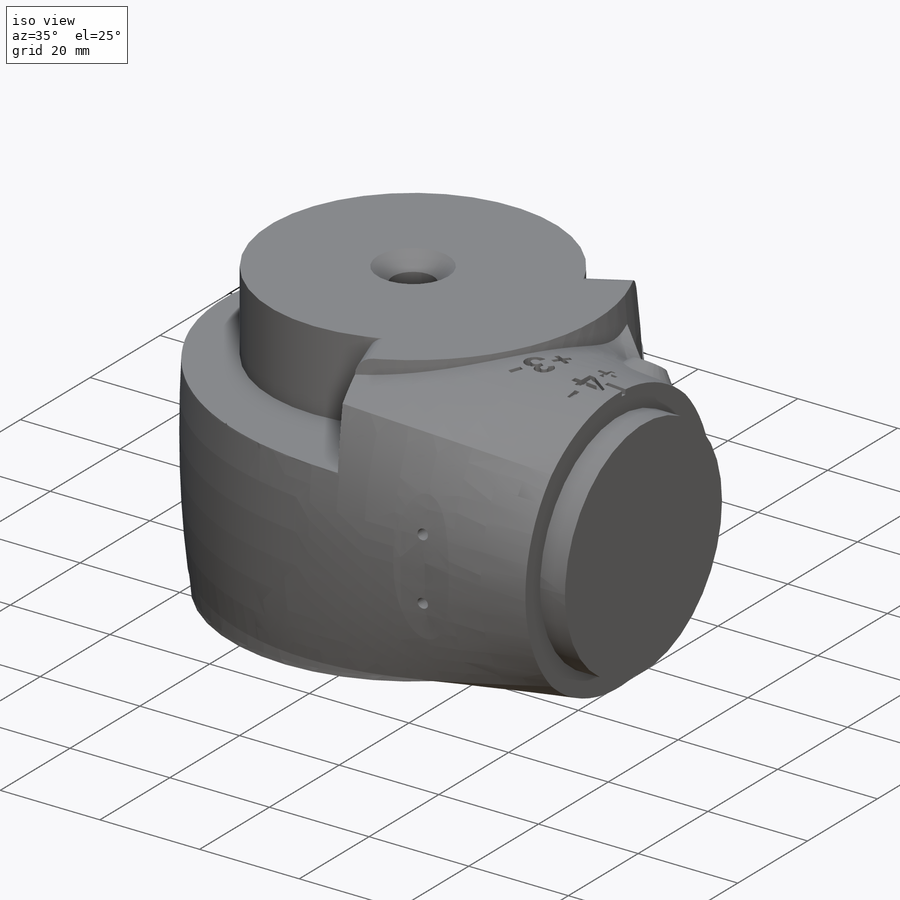
[diagram: iso view]
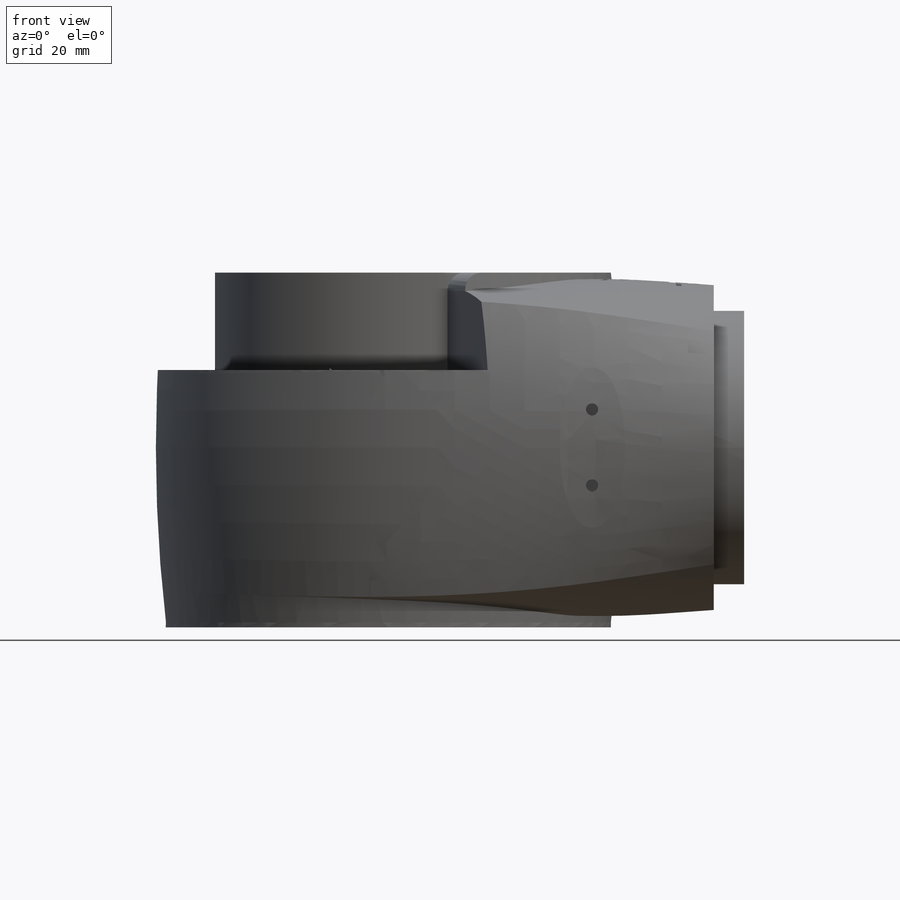
[diagram: front view]
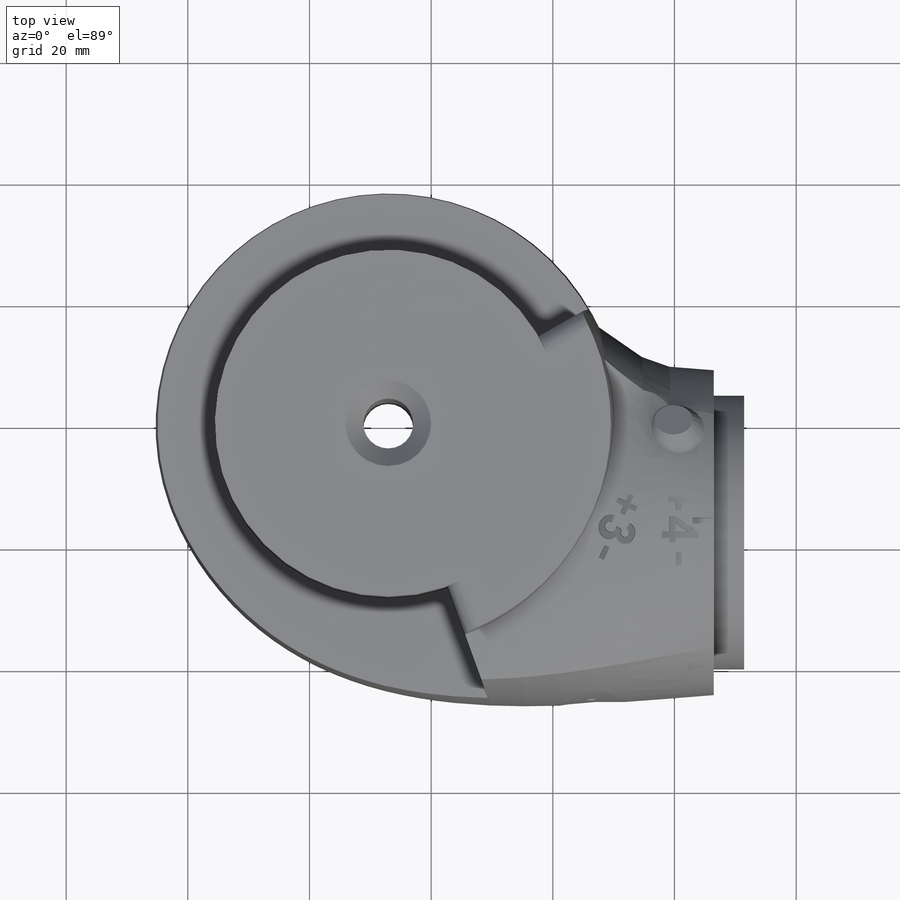
[diagram: top view]
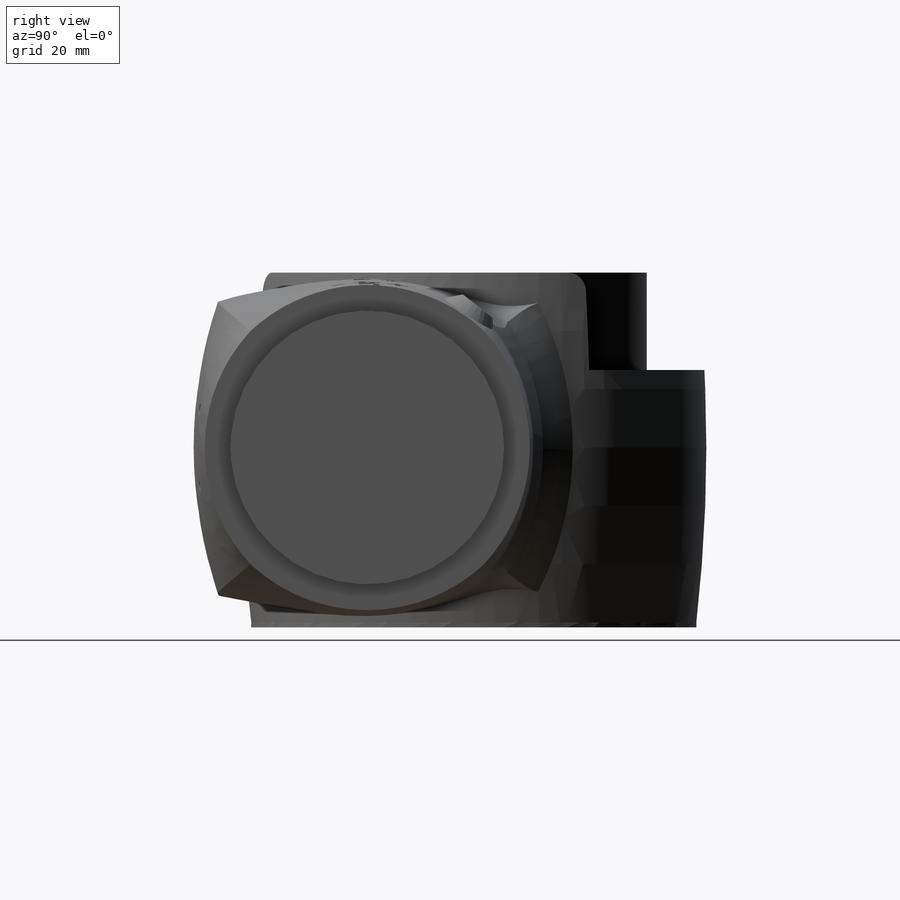
[diagram: right view]
SOLIDWORKS PART (.sldprt)
format: sldprt  version: not decoded by parser v0  size: 995,840 bytes
history: native  units: mm
features: sketch x9, cut_extrude x8, plane x4, chamfer x3, material x1, mirror x1, fillet x1, extrude x1 (+10 scaffold rows collapsed)
feature tree (38):
  scaffold x10  (default folders/planes/origin — collapsed)
  material  "Material <not specified>"
  plane  "Płaszczyzna przednia"
  plane  "Płaszczyzna górna"
  plane  "Płaszczyzna prawa"
  sketch  "Szkic1"  dims[D1=8.1mm]
  cut_extrude  "Wytnij-wyciągnięcie1"  [1 undecoded]
  chamfer  "Sfazowanie1"  Distance=2mm Angle=60deg
  chamfer  "Sfazowanie2"  Distance=2mm Angle=60deg
  sketch  "Szkic2"  dims[D1=0.0mm]
  cut_extrude  "Wytnij-wyciągnięcie2"  Depth=0.3mm
  plane  "Płaszczyzna1"
  mirror  "Lustro2"
  sketch  "Szkic3"  dims[c1.D1=41.0mm c1.D2=~75.731756mm c2.D2=70.0deg c2.D3=~82.862297mm c3.D3=30.0deg]
  cut_extrude  "Wytnij-wyciągnięcie3"  Depth=16mm
  sketch  "Szkic4"  dims[D1=1.0mm]
  cut_extrude  "Wytnij-wyciągnięcie4"  [1 undecoded]
  sketch  "Szkic5"  dims[D1=1.0mm]
  cut_extrude  "Wytnij-wyciągnięcie5"  [1 undecoded]
  fillet  "Zaokrąglenie1"  Radius=3mm
  sketch  "Szkic6"  dims[D1=0.0mm]
  cut_extrude  "Wytnij-wyciągnięcie6"  Depth=10mm
  sketch  "Szkic7"
  cut_extrude  "Wytnij-wyciągnięcie7"  Depth=10mm
  chamfer  "Sfazowanie3"  Distance=3mm Angle=45deg
  sketch  "Szkic8"  dims[D1=0.0mm]
  extrude  "Dodanie-wyciągnięcie1"  Depth=0.8mm
  sketch  "Szkic9"  dims[D1=0.05mm]
  cut_extrude  "Wytnij-wyciągnięcie8"  [1 undecoded]
decode coverage: 17 of 23 modeling features carry decoded parameters
note: ~ marks probable driven/reference dimensions
note: 4 parameter values undecoded
summary: no parameter record found for 4 features
note: suppression state not decoded; provenance and decode notes live in map.json
